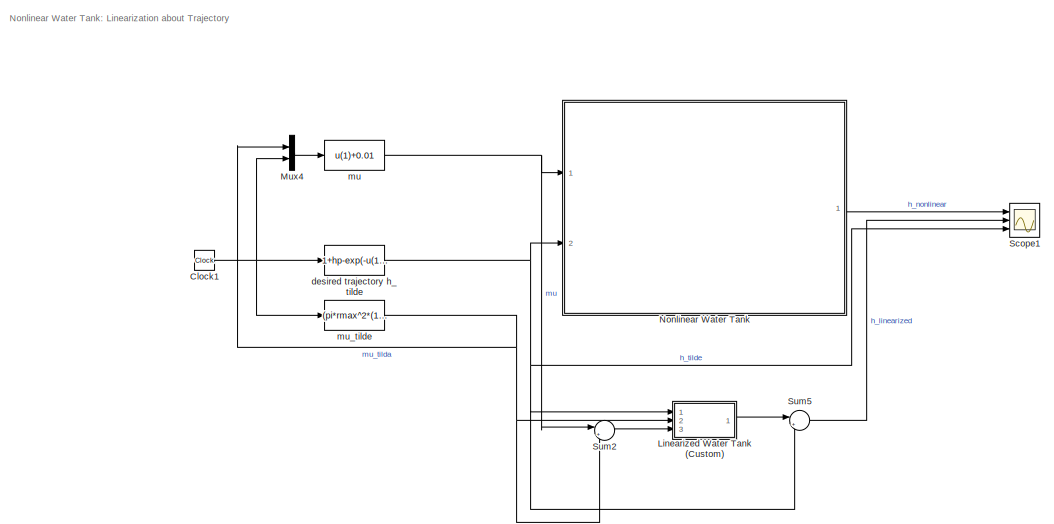
[diagram: root canvas - part 1/2, right side, full height]
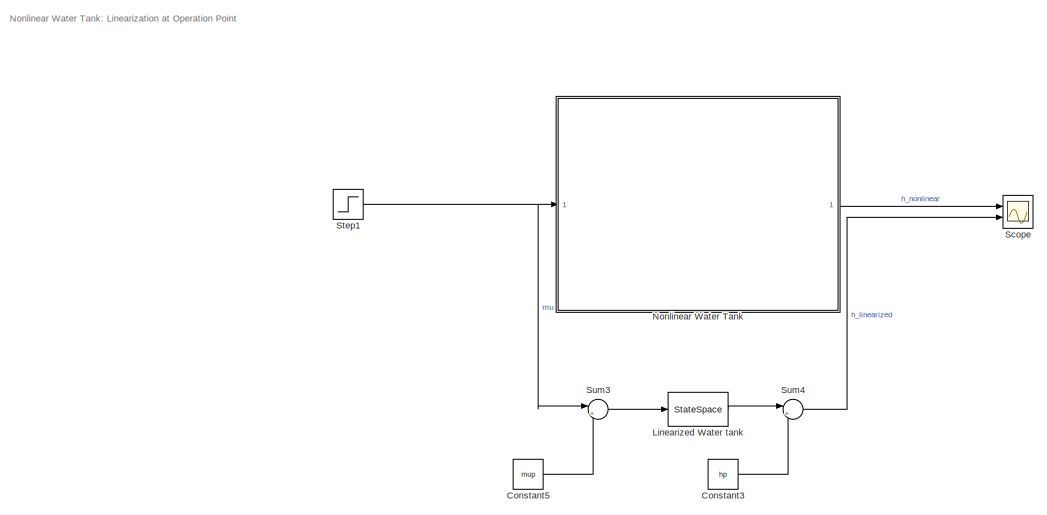
[diagram: root canvas - part 2/2, left side, full height]
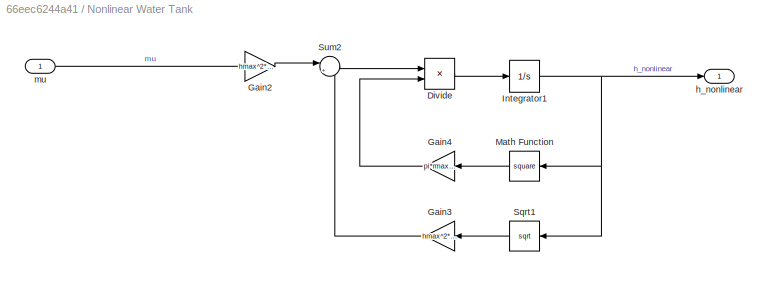
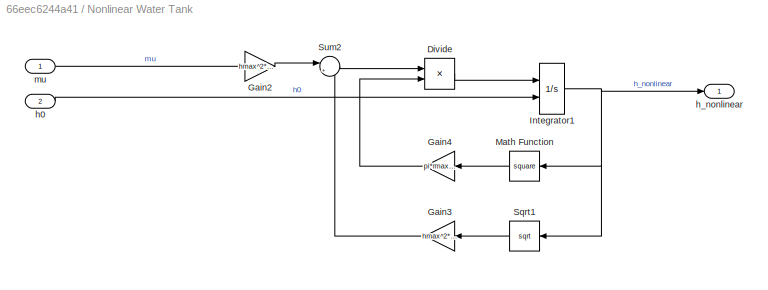
MODEL slx_66eec6244a41
KIND model
CONFIG AbsTol = auto
CONFIG EnableMultiTasking = off
CONFIG FixedStep = auto
CONFIG MaxStep = auto
CONFIG MinStep = auto
CONFIG RelTol = 1e-3
CONFIG SampleTimeConstraint = Unconstrained
CONFIG Solver = VariableStepAuto
CONFIG SolverName = VariableStepAuto
CONFIG StartTime = 0
CONFIG StopTime = 100
BLOCK [Clock] Clock1
BLOCK [Constant] Constant3
  Value = hp
BLOCK [Constant] Constant5
  Value = mup
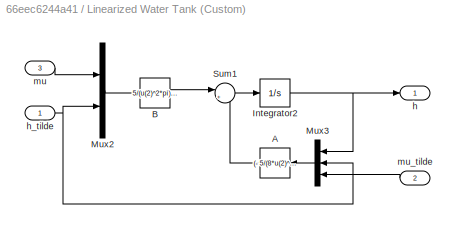
BLOCK [SubSystem] Linearized Water Tank (Custom) 
  Ports = [3, 1]
  RequestExecContextInheritance = off
  Variant = off
BLOCK [Fcn] Linearized Water Tank (Custom) /A
  Expr = (- 5/(8*u(2)^(5/2)*pi) - (20*u(3) - 5*u(2)^(1/2))/(2*u(2)^3*pi))*u(1)
BLOCK [Fcn] Linearized Water Tank (Custom) /B
  Expr = 5/(u(2)^2*pi)*u(1)
BLOCK [Integrator] Linearized Water Tank (Custom) /Integrator2
  Ports = [1, 1]
BLOCK [Mux] Linearized Water Tank (Custom) /Mux2
  DisplayOption = bar
  Inputs = 2
  Ports = [2, 1]
BLOCK [Mux] Linearized Water Tank (Custom) /Mux3
  DisplayOption = bar
  Inputs = 3
  Ports = [3, 1]
BLOCK [Sum] Linearized Water Tank (Custom) /Sum1
  IconShape = round
  InputSameDT = off
  Inputs = |++
  OutDataTypeStr = Inherit: Inherit via internal rule
  Ports = [2, 1]
  SaturateOnIntegerOverflow = off
BLOCK [Outport] Linearized Water Tank (Custom) /h
  IconDisplay = Port number
BLOCK [Inport] Linearized Water Tank (Custom) /h_tilde
  IconDisplay = Port number
BLOCK [Inport] Linearized Water Tank (Custom) /mu
  IconDisplay = Port number
  Port = 3
BLOCK [Inport] Linearized Water Tank (Custom) /mu_tilde
  IconDisplay = Port number
  Port = 2
BLOCK [StateSpace] Linearized Water tank
  A = (- 5/(8*hp^(5/2)*pi) - (20*mup - 5*hp^(1/2))/(2*hp^3*pi))
  B = 5/(hp^2*pi)
  D = 0
  InitialCondition = 0
  Ports = [1, 1]
BLOCK [Mux] Mux4
  DisplayOption = bar
  Inputs = 2
  Ports = [2, 1]
BLOCK [SubSystem] Nonlinear Water Tank
  Ports = [1, 1]
  RequestExecContextInheritance = off
  Variant = off
BLOCK [SubSystem] Nonlinear Water Tank 
  Ports = [2, 1]
  RequestExecContextInheritance = off
  Variant = off
BLOCK [Product] Nonlinear Water Tank /Divide
  InputSameDT = off
  Inputs = */
  OutDataTypeStr = Inherit: Inherit via internal rule
  Ports = [2, 1]
  RndMeth = Floor
  SaturateOnIntegerOverflow = off
BLOCK [Gain] Nonlinear Water Tank /Gain2
  Gain = hmax^2*kmu
  OutDataTypeStr = Inherit: Inherit via internal rule
  ParamDataTypeStr = Inherit: Inherit via internal rule
  SaturateOnIntegerOverflow = off
BLOCK [Gain] Nonlinear Water Tank /Gain3
  Gain = hmax^2*kv
  OutDataTypeStr = Inherit: Inherit via internal rule
  ParamDataTypeStr = Inherit: Inherit via internal rule
  SaturateOnIntegerOverflow = off
BLOCK [Gain] Nonlinear Water Tank /Gain4
  Gain = pi*rmax^2
  OutDataTypeStr = Inherit: Inherit via internal rule
  ParamDataTypeStr = Inherit: Inherit via internal rule
  SaturateOnIntegerOverflow = off
BLOCK [Integrator] Nonlinear Water Tank /Integrator1
  InitialCondition = h0
  InitialConditionSource = external
  Ports = [2, 1]
BLOCK [Math] Nonlinear Water Tank /Math Function
  Operator = square
  Ports = [1, 1]
BLOCK [Sqrt] Nonlinear Water Tank /Sqrt1
BLOCK [Sum] Nonlinear Water Tank /Sum2
  IconShape = round
  InputSameDT = off
  Inputs = |+-
  OutDataTypeStr = Inherit: Inherit via internal rule
  Ports = [2, 1]
  SaturateOnIntegerOverflow = off
BLOCK [Inport] Nonlinear Water Tank /h0 
  IconDisplay = Port number
  Port = 2
BLOCK [Outport] Nonlinear Water Tank /h_nonlinear
  IconDisplay = Port number
BLOCK [Inport] Nonlinear Water Tank /mu
  IconDisplay = Port number
BLOCK [Product] Nonlinear Water Tank/Divide
  InputSameDT = off
  Inputs = */
  OutDataTypeStr = Inherit: Inherit via internal rule
  Ports = [2, 1]
  RndMeth = Floor
  SaturateOnIntegerOverflow = off
BLOCK [Gain] Nonlinear Water Tank/Gain2
  Gain = hmax^2*kmu
  OutDataTypeStr = Inherit: Inherit via internal rule
  ParamDataTypeStr = Inherit: Inherit via internal rule
  SaturateOnIntegerOverflow = off
BLOCK [Gain] Nonlinear Water Tank/Gain3
  Gain = hmax^2*kv
  OutDataTypeStr = Inherit: Inherit via internal rule
  ParamDataTypeStr = Inherit: Inherit via internal rule
  SaturateOnIntegerOverflow = off
BLOCK [Gain] Nonlinear Water Tank/Gain4
  Gain = pi*rmax^2
  OutDataTypeStr = Inherit: Inherit via internal rule
  ParamDataTypeStr = Inherit: Inherit via internal rule
  SaturateOnIntegerOverflow = off
BLOCK [Integrator] Nonlinear Water Tank/Integrator1
  InitialCondition = hp
  Ports = [1, 1]
BLOCK [Math] Nonlinear Water Tank/Math Function
  Operator = square
  Ports = [1, 1]
BLOCK [Sqrt] Nonlinear Water Tank/Sqrt1
BLOCK [Sum] Nonlinear Water Tank/Sum2
  IconShape = round
  InputSameDT = off
  Inputs = |+-
  OutDataTypeStr = Inherit: Inherit via internal rule
  Ports = [2, 1]
  SaturateOnIntegerOverflow = off
BLOCK [Outport] Nonlinear Water Tank/h_nonlinear
  IconDisplay = Port number
BLOCK [Inport] Nonlinear Water Tank/mu
  IconDisplay = Port number
BLOCK [Scope] Scope
  NumInputPorts = 2
  Ports = [2]
  ScopeSpecificationString = Simulink.scopes.TimeScopeBlockCfg('CurrentConfiguration', extmgr.ConfigurationSet(extmgr.Configuration('Core','General UI',true),extmgr.Configuration('Core','Source UI',true),extmgr.Configuration('Sources','WiredSimulink',true,'DataLoggingVariableName','ScopeData1'),extmgr.Configuration('Visuals','Time Domain',true,'SerializedDisplays',{struct('MinYLimReal','0.19533','MaxYLimReal','0.24205','YLabe...<+1408ch>
BLOCK [Scope] Scope1
  NumInputPorts = 3
  Ports = [3]
  ScopeSpecificationString = Simulink.scopes.TimeScopeBlockCfg('CurrentConfiguration', extmgr.ConfigurationSet(extmgr.Configuration('Core','General UI',true),extmgr.Configuration('Core','Source UI',true),extmgr.Configuration('Sources','WiredSimulink',true,'DataLoggingVariableName','ScopeData2'),extmgr.Configuration('Visuals','Time Domain',true,'SerializedDisplays',{struct('MinYLimReal','3.8683','MaxYLimReal','5.18526','YLabel...<+1414ch>
BLOCK [Step] Step1
  After = mup+0.01
  SampleTime = 0
  Time = 0
BLOCK [Sum] Sum2
  IconShape = round
  InputSameDT = off
  Inputs = |+-
  OutDataTypeStr = Inherit: Inherit via internal rule
  Ports = [2, 1]
  SaturateOnIntegerOverflow = off
BLOCK [Sum] Sum3
  IconShape = round
  InputSameDT = off
  Inputs = |+-
  OutDataTypeStr = Inherit: Inherit via internal rule
  Ports = [2, 1]
  SaturateOnIntegerOverflow = off
BLOCK [Sum] Sum4
  IconShape = round
  InputSameDT = off
  Inputs = |++
  OutDataTypeStr = Inherit: Inherit via internal rule
  Ports = [2, 1]
  SaturateOnIntegerOverflow = off
BLOCK [Sum] Sum5
  IconShape = round
  InputSameDT = off
  Inputs = |++
  OutDataTypeStr = Inherit: Inherit via internal rule
  Ports = [2, 1]
  SaturateOnIntegerOverflow = off
BLOCK [Fcn] desired trajectory h_tilde
  Expr = 1+hp-exp(-u(1))
BLOCK [Fcn] mu
  Expr = u(1)+0.01
BLOCK [Fcn] mu_tilde
  Expr = (pi*rmax^2*(1+hp-exp(-u(1)))^2*exp(-u(1))+hmax^2*kv*sqrt(1+hp-exp(-u(1))))/(hmax^2*kmu)
ANNOTATION (root): Nonlinear Water Tank: Linearization about Trajectory
ANNOTATION (root): Nonlinear Water Tank: Linearization at Operation Point
NET Clock1:1 -> Mux4:2, desired trajectory h_tilde:1, mu_tilde:1
LINE Constant3:1 -> Sum4:2
LINE Constant5:1 -> Sum3:2
LINE Linearized Water Tank (Custom) /A:1 -> Linearized Water Tank (Custom) /Sum1:2
LINE Linearized Water Tank (Custom) /B:1 -> Linearized Water Tank (Custom) /Sum1:1
NET Linearized Water Tank (Custom) /Integrator2:1 -> Linearized Water Tank (Custom) /Mux3:1, Linearized Water Tank (Custom) /h:1
LINE Linearized Water Tank (Custom) /Mux2:1 -> Linearized Water Tank (Custom) /B:1
LINE Linearized Water Tank (Custom) /Mux3:1 -> Linearized Water Tank (Custom) /A:1
LINE Linearized Water Tank (Custom) /Sum1:1 -> Linearized Water Tank (Custom) /Integrator2:1
NET Linearized Water Tank (Custom) /h_tilde:1 -> Linearized Water Tank (Custom) /Mux2:2, Linearized Water Tank (Custom) /Mux3:2
LINE Linearized Water Tank (Custom) /mu:1 -> Linearized Water Tank (Custom) /Mux2:1
LINE Linearized Water Tank (Custom) /mu_tilde:1 -> Linearized Water Tank (Custom) /Mux3:3
LINE Linearized Water Tank (Custom) :1 -> Sum5:1
LINE Linearized Water tank:1 -> Sum4:1
LINE Mux4:1 -> mu:1
LINE Nonlinear Water Tank /Divide:1 -> Nonlinear Water Tank /Integrator1:1
LINE Nonlinear Water Tank /Gain2:1 -> Nonlinear Water Tank /Sum2:1
LINE Nonlinear Water Tank /Gain3:1 -> Nonlinear Water Tank /Sum2:2
LINE Nonlinear Water Tank /Gain4:1 -> Nonlinear Water Tank /Divide:2
NET Nonlinear Water Tank /Integrator1:1 -> Nonlinear Water Tank /Math Function:1, Nonlinear Water Tank /Sqrt1:1, Nonlinear Water Tank /h_nonlinear:1
LINE Nonlinear Water Tank /Math Function:1 -> Nonlinear Water Tank /Gain4:1
LINE Nonlinear Water Tank /Sqrt1:1 -> Nonlinear Water Tank /Gain3:1
LINE Nonlinear Water Tank /Sum2:1 -> Nonlinear Water Tank /Divide:1
LINE Nonlinear Water Tank /h0 :1 -> Nonlinear Water Tank /Integrator1:2
LINE Nonlinear Water Tank /mu:1 -> Nonlinear Water Tank /Gain2:1
LINE Nonlinear Water Tank :1 -> Scope1:1
LINE Nonlinear Water Tank/Divide:1 -> Nonlinear Water Tank/Integrator1:1
LINE Nonlinear Water Tank/Gain2:1 -> Nonlinear Water Tank/Sum2:1
LINE Nonlinear Water Tank/Gain3:1 -> Nonlinear Water Tank/Sum2:2
LINE Nonlinear Water Tank/Gain4:1 -> Nonlinear Water Tank/Divide:2
NET Nonlinear Water Tank/Integrator1:1 -> Nonlinear Water Tank/Math Function:1, Nonlinear Water Tank/Sqrt1:1, Nonlinear Water Tank/h_nonlinear:1
LINE Nonlinear Water Tank/Math Function:1 -> Nonlinear Water Tank/Gain4:1
LINE Nonlinear Water Tank/Sqrt1:1 -> Nonlinear Water Tank/Gain3:1
LINE Nonlinear Water Tank/Sum2:1 -> Nonlinear Water Tank/Divide:1
LINE Nonlinear Water Tank/mu:1 -> Nonlinear Water Tank/Gain2:1
LINE Nonlinear Water Tank:1 -> Scope:1
NET Step1:1 -> Nonlinear Water Tank:1, Sum3:1
LINE Sum2:1 -> Linearized Water Tank (Custom) :3
LINE Sum3:1 -> Linearized Water tank:1
LINE Sum4:1 -> Scope:2
LINE Sum5:1 -> Scope1:2
NET desired trajectory h_tilde:1 -> Linearized Water Tank (Custom) :1, Nonlinear Water Tank :2, Scope1:3, Sum5:2
NET mu:1 -> Nonlinear Water Tank :1, Sum2:1
NET mu_tilde:1 -> Linearized Water Tank (Custom) :2, Mux4:1, Sum2:2
note: NET lines group one-source signal fan-out (src -> all destinations, sorted); 1:1 wires keep LINE
